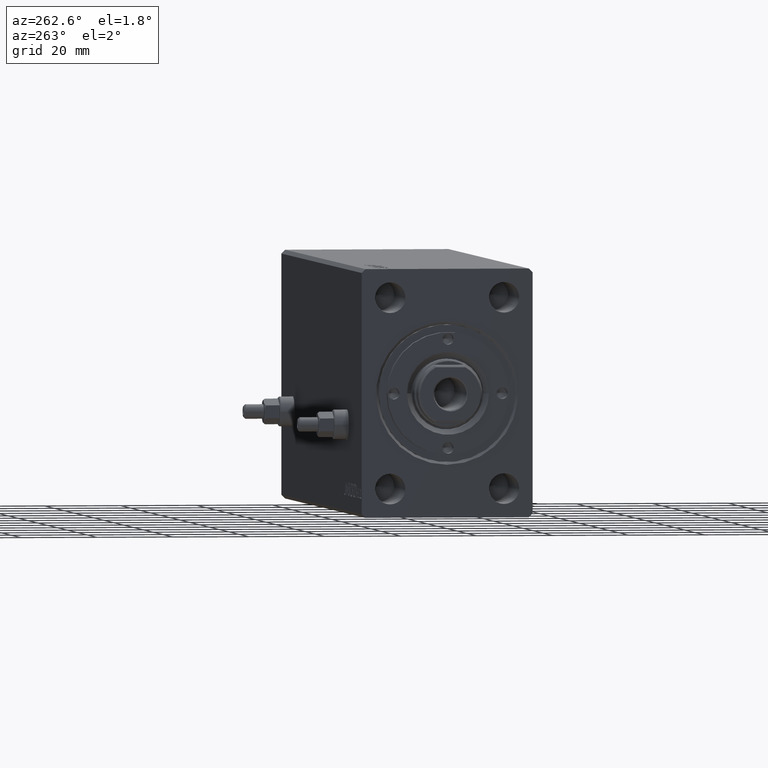
[diagram: clean part render]
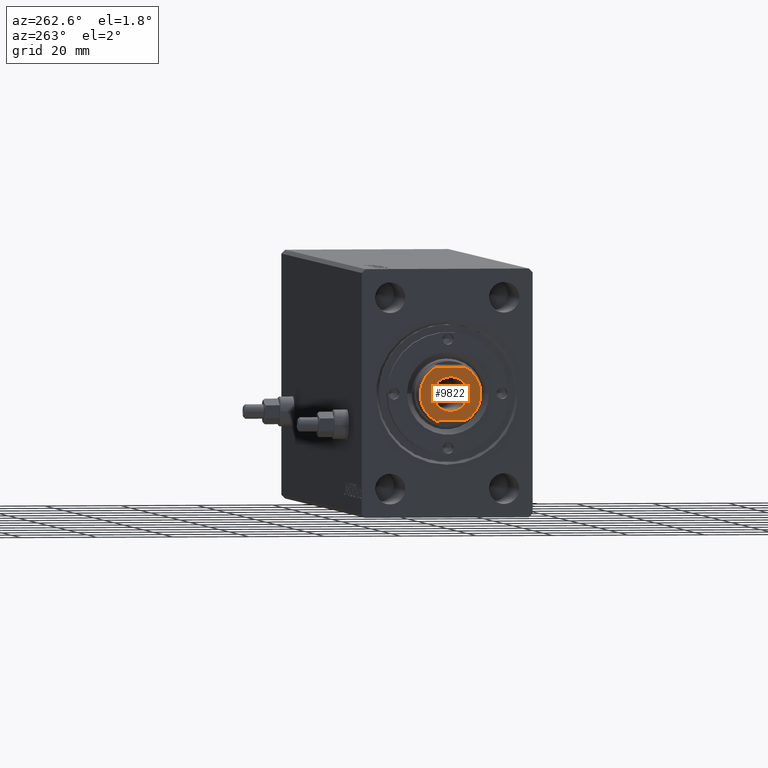
[diagram: same view with one face highlighted and labeled with its STEP entity id]
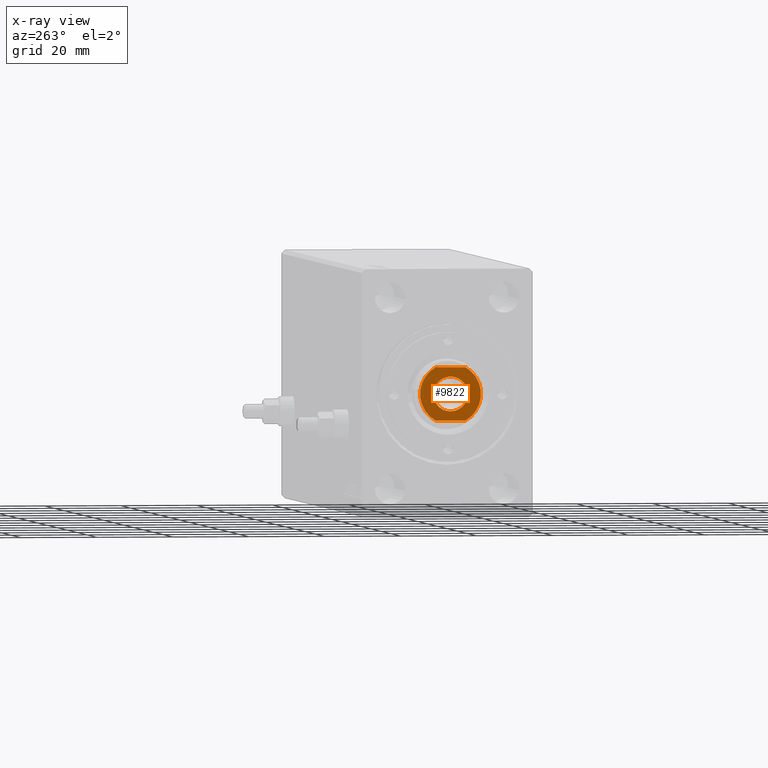
[diagram: x-ray of the same camera — body ghosted, the highlighted face saturated]
A machine part, auxiliary view. The second image highlights one B-rep face of the part: STEP entity #9822.
The next image is the same camera in x-ray: the body ghosted, the highlighted face saturated — about 0% of this face is hidden behind the body in this view.
In plain terms, the highlighted planar face has unit normal (-1, 0, 0).
Its self-contained STEP definition (entity closure, byte-faithful):
#988 = EDGE_CURVE ( 'NONE', #13440, #37631, #43790, .T. ) ;
#1330 = CARTESIAN_POINT ( 'NONE',  ( -7.000000000000013323, 3.872983346207435673, 157.2000000000000171 ) ) ;
#1346 = CARTESIAN_POINT ( 'NONE',  ( 0.000000000000000000, 0.000000000000000000, 157.2000000000000171 ) ) ;
#2297 = ORIENTED_EDGE ( 'NONE', *, *, #32333, .T. ) ;
#4325 = DIRECTION ( 'NONE',  ( 1.000000000000000000, 0.000000000000000000, 0.000000000000000000 ) ) ;
#4771 = DIRECTION ( 'NONE',  ( 1.000000000000000000, 0.000000000000000000, -0.000000000000000000 ) ) ;
#4836 = DIRECTION ( 'NONE',  ( 1.000000000000000000, 0.000000000000000000, 0.000000000000000000 ) ) ;
#5494 = CARTESIAN_POINT ( 'NONE',  ( -4.550000000000054001, 5.572142936120522408E-16, 157.2000000000000171 ) ) ;
#6014 = EDGE_CURVE ( 'NONE', #32306, #9449, #34781, .T. ) ;
#6055 = AXIS2_PLACEMENT_3D ( 'NONE', #10429, #41740, #11108 ) ;
#7439 = VECTOR ( 'NONE', #36494, 1000.000000000000000 ) ;
#9449 = VERTEX_POINT ( 'NONE', #40410 ) ;
#9822 = ADVANCED_FACE ( 'NONE', ( #22365, #39941 ), #36520, .T. ) ;
#10429 = CARTESIAN_POINT ( 'NONE',  ( 0.000000000000000000, 0.000000000000000000, 157.2000000000000171 ) ) ;
#10621 = AXIS2_PLACEMENT_3D ( 'NONE', #18472, #15038, #4325 ) ;
#10664 = ORIENTED_EDGE ( 'NONE', *, *, #12408, .T. ) ;
#11108 = DIRECTION ( 'NONE',  ( 1.000000000000000000, 0.000000000000000000, 0.000000000000000000 ) ) ;
#11211 = VECTOR ( 'NONE', #41402, 1000.000000000000000 ) ;
#11380 = CIRCLE ( 'NONE', #10621, 8.000000000000014211 ) ;
#12028 = CARTESIAN_POINT ( 'NONE',  ( -7.000000000000013323, -4.000000000000001776, 157.2000000000000171 ) ) ;
#12408 = EDGE_CURVE ( 'NONE', #9449, #13440, #13489, .T. ) ;
#12435 = EDGE_LOOP ( 'NONE', ( #2297, #32156 ) ) ;
#12492 = ORIENTED_EDGE ( 'NONE', *, *, #6014, .T. ) ;
#13440 = VERTEX_POINT ( 'NONE', #1330 ) ;
#13489 = CIRCLE ( 'NONE', #14211, 8.000000000000014211 ) ;
#14211 = AXIS2_PLACEMENT_3D ( 'NONE', #36502, #23246, #19128 ) ;
#14363 = EDGE_CURVE ( 'NONE', #37631, #32306, #11380, .T. ) ;
#15038 = DIRECTION ( 'NONE',  ( 0.000000000000000000, 0.000000000000000000, 1.000000000000000000 ) ) ;
#15944 = DIRECTION ( 'NONE',  ( -0.000000000000000000, -0.000000000000000000, -1.000000000000000000 ) ) ;
#17951 = VERTEX_POINT ( 'NONE', #25086 ) ;
#18472 = CARTESIAN_POINT ( 'NONE',  ( 0.000000000000000000, 0.000000000000000000, 157.2000000000000171 ) ) ;
#18548 = CARTESIAN_POINT ( 'NONE',  ( 0.000000000000000000, 0.000000000000000000, 157.2000000000000171 ) ) ;
#19128 = DIRECTION ( 'NONE',  ( 1.000000000000000000, 0.000000000000000000, 0.000000000000000000 ) ) ;
#19340 = CARTESIAN_POINT ( 'NONE',  ( -7.000000000000013323, -3.872983346207435673, 157.2000000000000171 ) ) ;
#21411 = CARTESIAN_POINT ( 'NONE',  ( 7.000000000000013323, -3.872983346207435673, 157.2000000000000171 ) ) ;
#21473 = AXIS2_PLACEMENT_3D ( 'NONE', #1346, #43820, #4771 ) ;
#22365 = FACE_OUTER_BOUND ( 'NONE', #29137, .T. ) ;
#23246 = DIRECTION ( 'NONE',  ( 0.000000000000000000, 0.000000000000000000, 1.000000000000000000 ) ) ;
#25086 = CARTESIAN_POINT ( 'NONE',  ( 4.550000000000054001, 0.000000000000000000, 157.2000000000000171 ) ) ;
#27838 = AXIS2_PLACEMENT_3D ( 'NONE', #18548, #15944, #4836 ) ;
#29137 = EDGE_LOOP ( 'NONE', ( #41602, #44871, #12492, #10664 ) ) ;
#30302 = EDGE_CURVE ( 'NONE', #44561, #17951, #36597, .T. ) ;
#32156 = ORIENTED_EDGE ( 'NONE', *, *, #30302, .T. ) ;
#32306 = VERTEX_POINT ( 'NONE', #21411 ) ;
#32333 = EDGE_CURVE ( 'NONE', #17951, #44561, #38149, .T. ) ;
#34781 = LINE ( 'NONE', #39287, #11211 ) ;
#36494 = DIRECTION ( 'NONE',  ( 0.000000000000000000, -1.000000000000000000, 0.000000000000000000 ) ) ;
#36502 = CARTESIAN_POINT ( 'NONE',  ( 0.000000000000000000, 0.000000000000000000, 157.2000000000000171 ) ) ;
#36520 = PLANE ( 'NONE',  #21473 ) ;
#36597 = CIRCLE ( 'NONE', #27838, 4.550000000000054001 ) ;
#37631 = VERTEX_POINT ( 'NONE', #19340 ) ;
#38149 = CIRCLE ( 'NONE', #6055, 4.550000000000054001 ) ;
#39287 = CARTESIAN_POINT ( 'NONE',  ( 7.000000000000013323, 4.000000000000001776, 157.2000000000000171 ) ) ;
#39941 = FACE_BOUND ( 'NONE', #12435, .T. ) ;
#40410 = CARTESIAN_POINT ( 'NONE',  ( 7.000000000000007105, 3.872983346207435673, 157.2000000000000171 ) ) ;
#41402 = DIRECTION ( 'NONE',  ( 0.000000000000000000, 1.000000000000000000, 0.000000000000000000 ) ) ;
#41602 = ORIENTED_EDGE ( 'NONE', *, *, #988, .T. ) ;
#41740 = DIRECTION ( 'NONE',  ( -0.000000000000000000, -0.000000000000000000, -1.000000000000000000 ) ) ;
#43790 = LINE ( 'NONE', #12028, #7439 ) ;
#43820 = DIRECTION ( 'NONE',  ( 0.000000000000000000, 0.000000000000000000, 1.000000000000000000 ) ) ;
#44561 = VERTEX_POINT ( 'NONE', #5494 ) ;
#44871 = ORIENTED_EDGE ( 'NONE', *, *, #14363, .T. ) ;